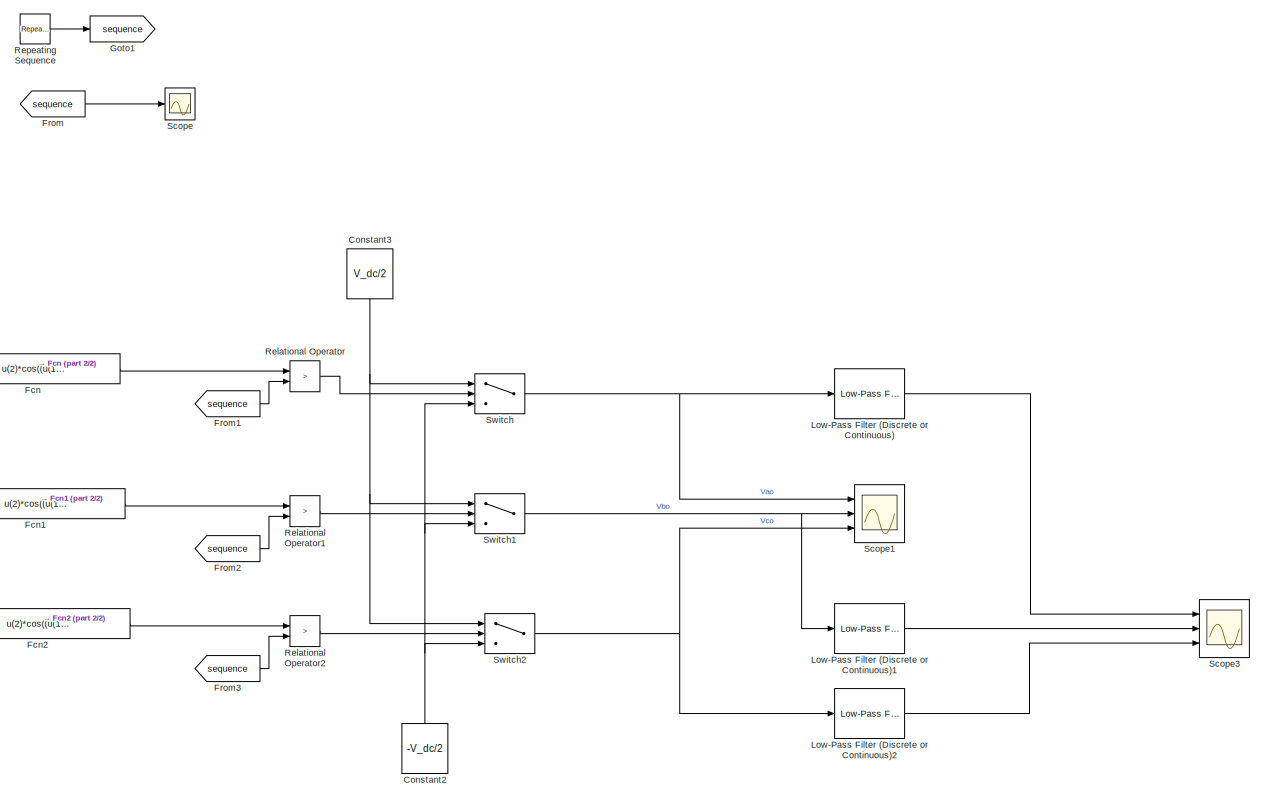
[diagram: root canvas - part 1/2, center side, full height]
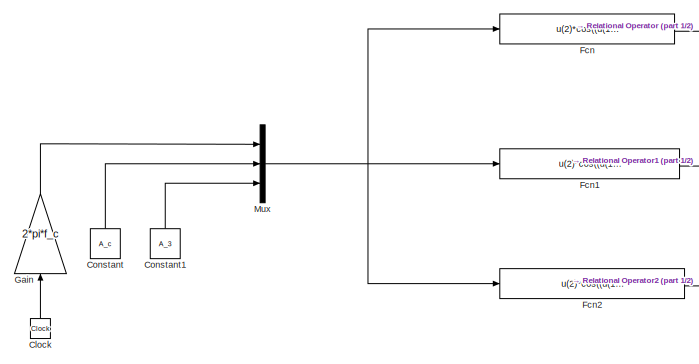
[diagram: root canvas - part 2/2, middle left region]
MODEL slx_c2daa17f0993
KIND model
CONFIG AbsTol = auto
CONFIG EnableMultiTasking = off
CONFIG FixedStep = 1e-6
CONFIG MaxStep = auto
CONFIG MinStep = auto
CONFIG RelTol = 1e-3
CONFIG SampleTimeConstraint = Unconstrained
CONFIG Solver = FixedStepDiscrete
CONFIG SolverName = FixedStepDiscrete
CONFIG StartTime = 0.0
CONFIG StopTime = 1
BLOCK [Clock] Clock
BLOCK [Constant] Constant
  Value = A_c
BLOCK [Constant] Constant1
  Value = A_3
BLOCK [Constant] Constant2
  Value = -V_dc/2
BLOCK [Constant] Constant3
  Value = V_dc/2
BLOCK [Fcn] Fcn
  Expr = u(2)*cos((u(1))) +u(3)*cos(3*u(1))
BLOCK [Fcn] Fcn1
  Expr = u(2)*cos((u(1))-2*pi/3) +u(3)*cos(3*u(1))
BLOCK [Fcn] Fcn2
  Expr = u(2)*cos((u(1))+2*pi/3) +u(3)*cos(3*u(1))
BLOCK [From] From
  GotoTag = sequence
BLOCK [From] From1
  GotoTag = sequence
BLOCK [From] From2
  GotoTag = sequence
BLOCK [From] From3
  GotoTag = sequence
BLOCK [Gain] Gain
  Gain = 2*pi*f_c
  OutDataTypeStr = Inherit: Inherit via internal rule
  ParamDataTypeStr = Inherit: Inherit via internal rule
  SaturateOnIntegerOverflow = off
BLOCK [Goto] Goto1
  GotoTag = sequence
BLOCK [Reference] Low-Pass Filter (Discrete or Continuous)  REF=peGeneralControl/Low-Pass Filter
(Discrete or Continuous)
  Ports = [1, 1]
  SourceBlock = peGeneralControl/Low-Pass Filter\n(Discrete or Continuous)
  SourceType = Low-Pass Filter (Discrete or Continuous)
BLOCK [Reference] Low-Pass Filter (Discrete or Continuous)1  REF=peGeneralControl/Low-Pass Filter
(Discrete or Continuous)
  Ports = [1, 1]
  SourceBlock = peGeneralControl/Low-Pass Filter\n(Discrete or Continuous)
  SourceType = Low-Pass Filter (Discrete or Continuous)
BLOCK [Reference] Low-Pass Filter (Discrete or Continuous)2  REF=peGeneralControl/Low-Pass Filter
(Discrete or Continuous)
  Ports = [1, 1]
  SourceBlock = peGeneralControl/Low-Pass Filter\n(Discrete or Continuous)
  SourceType = Low-Pass Filter (Discrete or Continuous)
BLOCK [Mux] Mux
  DisplayOption = bar
  Inputs = 3
  Ports = [3, 1]
BLOCK [RelationalOperator] Relational Operator
  InputSameDT = off
  Operator = >
  OutDataTypeStr = boolean
  Ports = [2, 1]
  RndMeth = Simplest
BLOCK [RelationalOperator] Relational Operator1
  InputSameDT = off
  Operator = >
  OutDataTypeStr = boolean
  Ports = [2, 1]
  RndMeth = Simplest
BLOCK [RelationalOperator] Relational Operator2
  InputSameDT = off
  Operator = >
  OutDataTypeStr = boolean
  Ports = [2, 1]
  RndMeth = Simplest
BLOCK [Reference] Repeating Sequence  REF=simulink/Sources/Repeating
Sequence
  Ports = [0, 1]
  SourceBlock = simulink/Sources/Repeating\nSequence
  SourceProductBaseCode = SL
  SourceProductName = Simulink
  SourceType = Repeating table
BLOCK [Scope] Scope
  Floating = off
  NumInputPorts = 1
  Ports = [1]
  ScopeSpecificationString = Simulink.scopes.TimeScopeBlockCfg('CurrentConfiguration', extmgr.ConfigurationSet(extmgr.Configuration('Core','General UI',true),extmgr.Configuration('Core','Source UI',true),extmgr.Configuration('Sources','WiredSimulink',true),extmgr.Configuration('Visuals','Time Domain',true,'SerializedDisplays',{struct('MinYLimReal','-1.25','MaxYLimReal','1.25','YLabelReal','','MinYLimMag','0.00000','MaxYLimMag...<+1391ch>
BLOCK [Scope] Scope1
  Floating = off
  NumInputPorts = 3
  Ports = [3]
  ScopeSpecificationString = Simulink.scopes.TimeScopeBlockCfg('CurrentConfiguration', extmgr.ConfigurationSet(extmgr.Configuration('Core','General UI',true),extmgr.Configuration('Core','Source UI',true),extmgr.Configuration('Sources','WiredSimulink',true,'DataLoggingVariableName','ScopeData1'),extmgr.Configuration('Visuals','Time Domain',true,'SerializedDisplays',{struct('MinYLimReal','-72.83507','MaxYLimReal','80.20198','YL...<+2761ch>
BLOCK [Scope] Scope3
  Floating = off
  NumInputPorts = 3
  Ports = [3]
  ScopeSpecificationString = Simulink.scopes.TimeScopeBlockCfg('CurrentConfiguration', extmgr.ConfigurationSet(extmgr.Configuration('Core','General UI',true),extmgr.Configuration('Core','Source UI',true),extmgr.Configuration('Sources','WiredSimulink',true,'DataLoggingVariableName','ScopeData3'),extmgr.Configuration('Visuals','Time Domain',true,'SerializedDisplays',{struct('MinYLimReal','-102.76798','MaxYLimReal','98.72556','Y...<+2932ch>
BLOCK [Switch] Switch
  Criteria = u2 > Threshold
  InputSameDT = off
  SaturateOnIntegerOverflow = off
  Threshold = 0.5
BLOCK [Switch] Switch1
  Criteria = u2 > Threshold
  InputSameDT = off
  SaturateOnIntegerOverflow = off
  Threshold = 0.5
BLOCK [Switch] Switch2
  Criteria = u2 > Threshold
  InputSameDT = off
  SaturateOnIntegerOverflow = off
  Threshold = 0.5
LINE Clock:1 -> Gain:1
LINE Constant1:1 -> Mux:3
NET Constant2:1 -> Switch1:3, Switch2:3, Switch:3
NET Constant3:1 -> Switch1:1, Switch2:1, Switch:1
LINE Constant:1 -> Mux:2
LINE Fcn1:1 -> Relational Operator1:1
LINE Fcn2:1 -> Relational Operator2:1
LINE Fcn:1 -> Relational Operator:1
LINE From1:1 -> Relational Operator:2
LINE From2:1 -> Relational Operator1:2
LINE From3:1 -> Relational Operator2:2
LINE From:1 -> Scope:1
LINE Gain:1 -> Mux:1
LINE Low-Pass Filter (Discrete or Continuous)1:1 -> Scope3:2
LINE Low-Pass Filter (Discrete or Continuous)2:1 -> Scope3:3
LINE Low-Pass Filter (Discrete or Continuous):1 -> Scope3:1
NET Mux:1 -> Fcn1:1, Fcn2:1, Fcn:1
LINE Relational Operator1:1 -> Switch1:2
LINE Relational Operator2:1 -> Switch2:2
LINE Relational Operator:1 -> Switch:2
LINE Repeating Sequence:1 -> Goto1:1
NET Switch1:1 -> Low-Pass Filter (Discrete or Continuous)1:1, Scope1:2
NET Switch2:1 -> Low-Pass Filter (Discrete or Continuous)2:1, Scope1:3
NET Switch:1 -> Low-Pass Filter (Discrete or Continuous):1, Scope1:1
note: NET lines group one-source signal fan-out (src -> all destinations, sorted); 1:1 wires keep LINE
